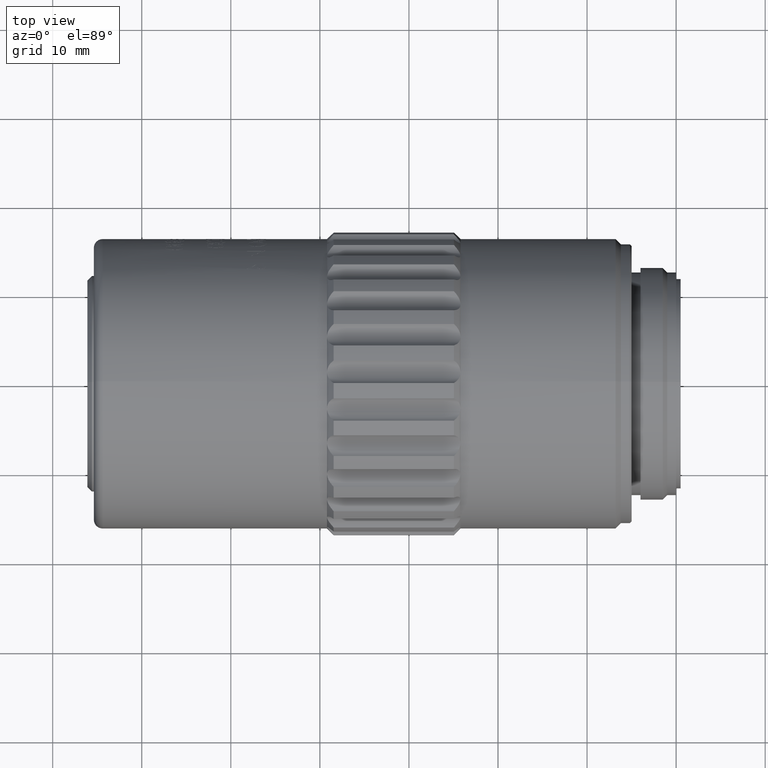
[diagram: clean part render]
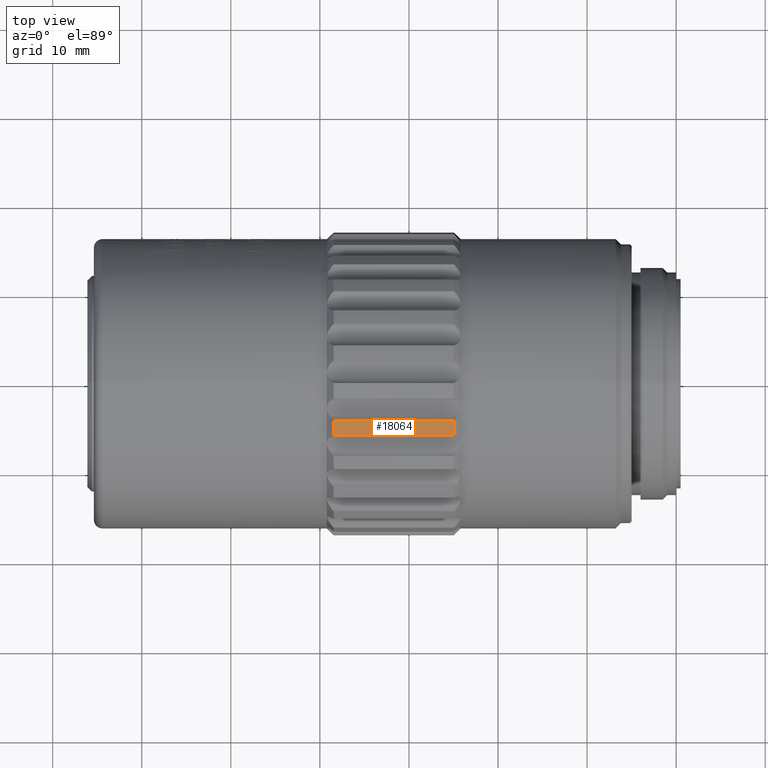
[diagram: same view with one face highlighted and labeled with its STEP entity id]
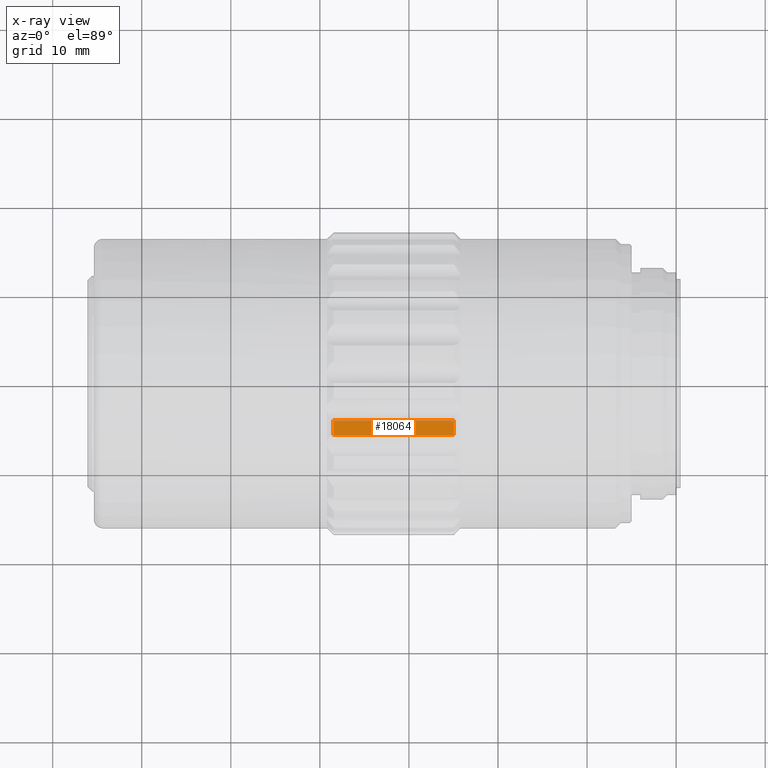
[diagram: x-ray of the same camera — body ghosted, the highlighted face saturated]
A machine part, top view. The second image highlights one B-rep face of the part: STEP entity #18064.
The next image is the same camera in x-ray: the body ghosted, the highlighted face saturated — about 0% of this face is hidden behind the body in this view.
In plain terms, the highlighted cylindrical surface (partial cylindrical patch) has radius 17 mm, axis along (-1, -0, -0).
Its self-contained STEP definition (entity closure, byte-faithful):
#815 = CARTESIAN_POINT ( 'NONE',  ( 78.99999999999998579, -6.068508530115234834, 15.87996234944903051 ) ) ;
#1511 = FACE_OUTER_BOUND ( 'NONE', #4214, .T. ) ;
#3857 = ORIENTED_EDGE ( 'NONE', *, *, #23442, .T. ) ;
#3881 = LINE ( 'NONE', #6353, #8909 ) ;
#4214 = EDGE_LOOP ( 'NONE', ( #3857, #14388, #16542, #22943 ) ) ;
#5597 = CARTESIAN_POINT ( 'NONE',  ( 61.54999999999999716, -4.424481144593304549, 16.41413922815139514 ) ) ;
#6353 = CARTESIAN_POINT ( 'NONE',  ( 78.99999999999998579, -4.424481144593304549, 16.41413922815139514 ) ) ;
#8909 = VECTOR ( 'NONE', #29245, 1000.000000000000000 ) ;
#9087 = DIRECTION ( 'NONE',  ( -1.000000000000000000, -0.000000000000000000, -0.000000000000000000 ) ) ;
#9767 = EDGE_CURVE ( 'NONE', #24593, #15082, #20493, .T. ) ;
#9804 = VERTEX_POINT ( 'NONE', #5597 ) ;
#10247 = CARTESIAN_POINT ( 'NONE',  ( 75.04999999999999716, -4.424481144593303661, 16.41413922815139514 ) ) ;
#11888 = DIRECTION ( 'NONE',  ( 0.000000000000000000, 0.000000000000000000, 1.000000000000000000 ) ) ;
#12522 = CARTESIAN_POINT ( 'NONE',  ( 75.04999999999999716, 0.000000000000000000, 0.000000000000000000 ) ) ;
#14388 = ORIENTED_EDGE ( 'NONE', *, *, #22041, .T. ) ;
#15082 = VERTEX_POINT ( 'NONE', #10247 ) ;
#15196 = AXIS2_PLACEMENT_3D ( 'NONE', #15553, #25593, #20160 ) ;
#15326 = DIRECTION ( 'NONE',  ( 0.000000000000000000, 0.000000000000000000, 1.000000000000000000 ) ) ;
#15553 = CARTESIAN_POINT ( 'NONE',  ( 61.54999999999999716, 0.000000000000000000, 0.000000000000000000 ) ) ;
#16542 = ORIENTED_EDGE ( 'NONE', *, *, #9767, .T. ) ;
#18064 = ADVANCED_FACE ( 'NONE', ( #1511 ), #26878, .T. ) ;
#20054 = EDGE_CURVE ( 'NONE', #15082, #9804, #3881, .T. ) ;
#20160 = DIRECTION ( 'NONE',  ( 0.000000000000000000, 0.000000000000000000, -1.000000000000000000 ) ) ;
#20261 = DIRECTION ( 'NONE',  ( -1.000000000000000000, -0.000000000000000000, -0.000000000000000000 ) ) ;
#20493 = CIRCLE ( 'NONE', #21017, 17.00000000000000000 ) ;
#20570 = DIRECTION ( 'NONE',  ( 1.000000000000000000, -0.000000000000000000, -0.000000000000000000 ) ) ;
#21017 = AXIS2_PLACEMENT_3D ( 'NONE', #12522, #20261, #15326 ) ;
#22041 = EDGE_CURVE ( 'NONE', #24193, #24593, #23368, .T. ) ;
#22943 = ORIENTED_EDGE ( 'NONE', *, *, #20054, .T. ) ;
#23368 = LINE ( 'NONE', #815, #23699 ) ;
#23442 = EDGE_CURVE ( 'NONE', #9804, #24193, #27308, .T. ) ;
#23699 = VECTOR ( 'NONE', #20570, 1000.000000000000000 ) ;
#24193 = VERTEX_POINT ( 'NONE', #24604 ) ;
#24396 = AXIS2_PLACEMENT_3D ( 'NONE', #24398, #9087, #11888 ) ;
#24398 = CARTESIAN_POINT ( 'NONE',  ( 33.89999999999999858, 0.000000000000000000, 0.000000000000000000 ) ) ;
#24593 = VERTEX_POINT ( 'NONE', #28002 ) ;
#24604 = CARTESIAN_POINT ( 'NONE',  ( 61.54999999999999716, -6.068508530115234834, 15.87996234944903051 ) ) ;
#25593 = DIRECTION ( 'NONE',  ( 1.000000000000000000, 0.000000000000000000, 0.000000000000000000 ) ) ;
#26878 = CYLINDRICAL_SURFACE ( 'NONE', #24396, 17.00000000000000000 ) ;
#27308 = CIRCLE ( 'NONE', #15196, 17.00000000000000000 ) ;
#28002 = CARTESIAN_POINT ( 'NONE',  ( 75.04999999999999716, -6.068508530115235722, 15.87996234944902696 ) ) ;
#29245 = DIRECTION ( 'NONE',  ( -1.000000000000000000, 0.000000000000000000, 0.000000000000000000 ) ) ;